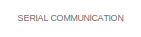
[diagram: root canvas - part 1/9, top left region]
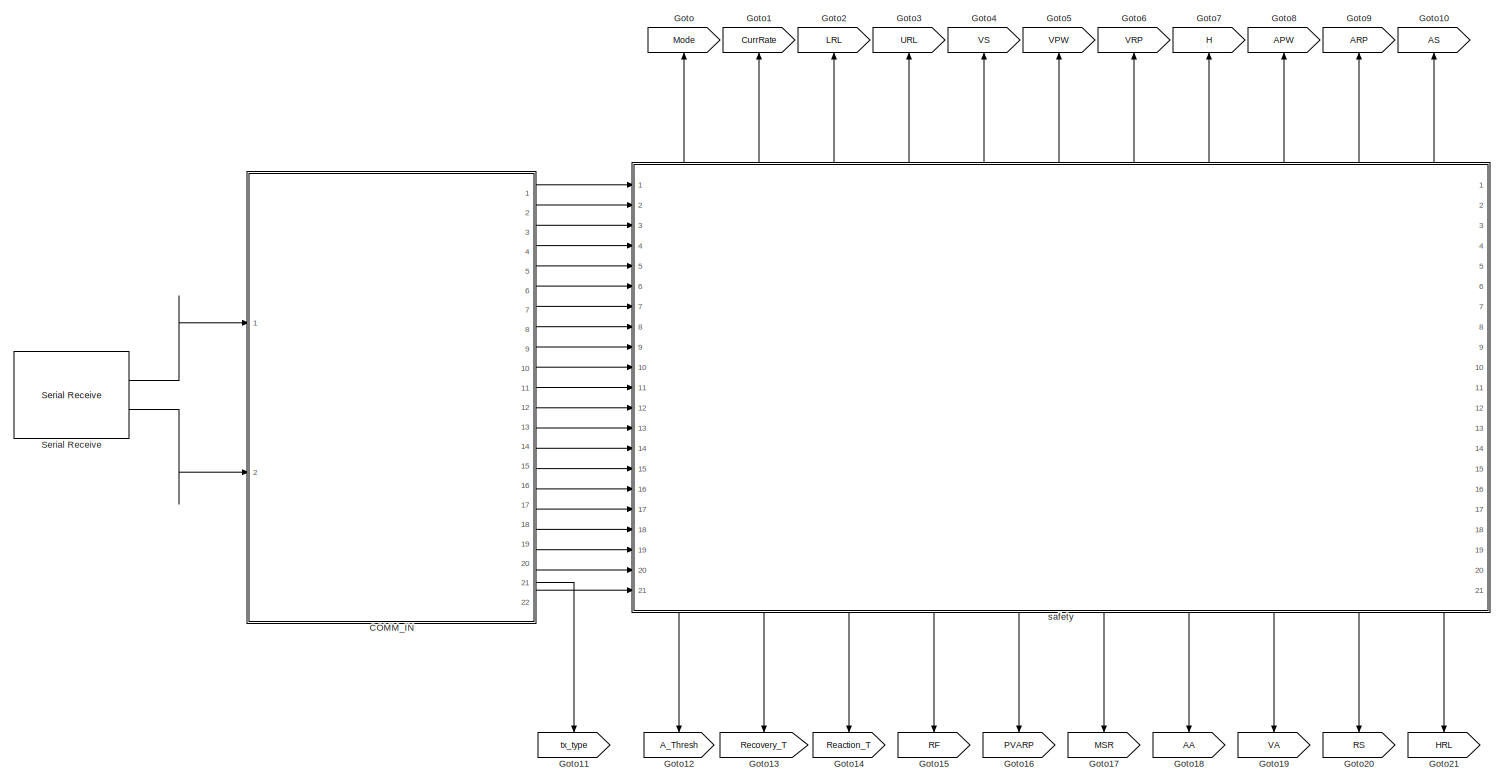
[diagram: root canvas - part 2/9, top left region]
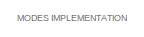
[diagram: root canvas - part 3/9, top right region]
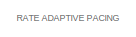
[diagram: root canvas - part 4/9, top left region]
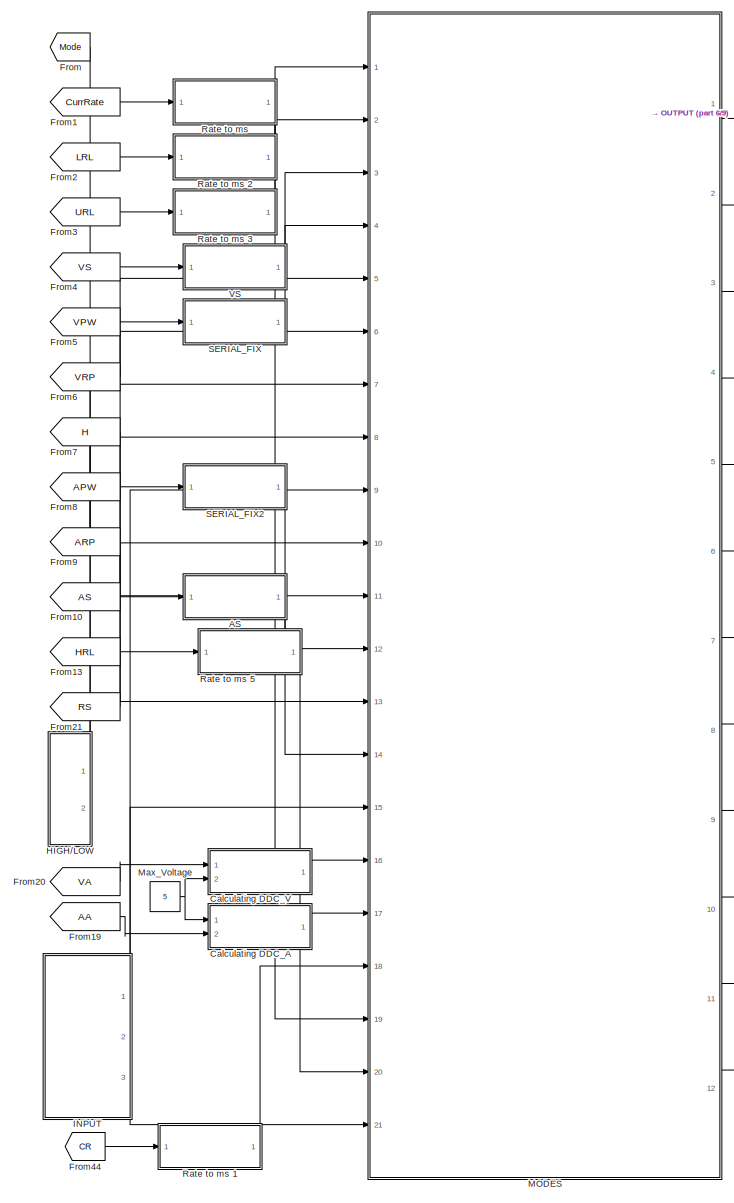
[diagram: root canvas - part 5/9, middle right region]
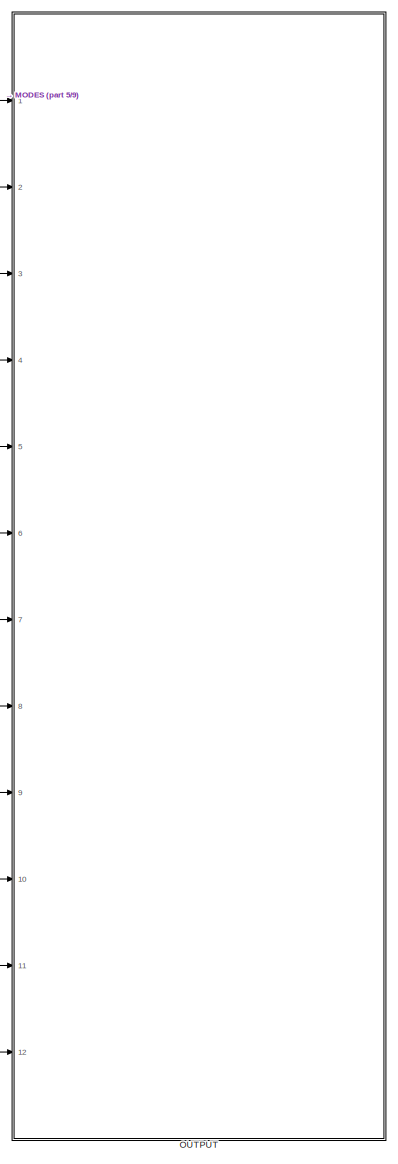
[diagram: root canvas - part 6/9, middle right region]
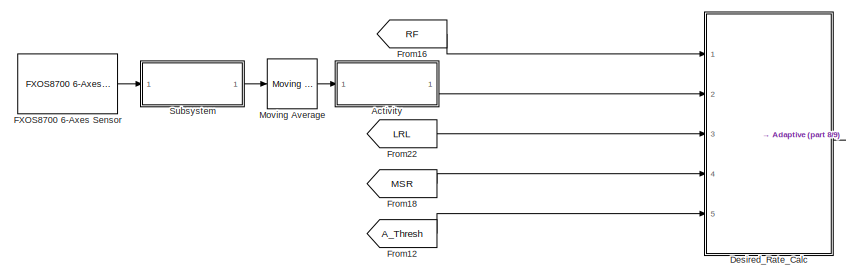
[diagram: root canvas - part 7/9, central region]
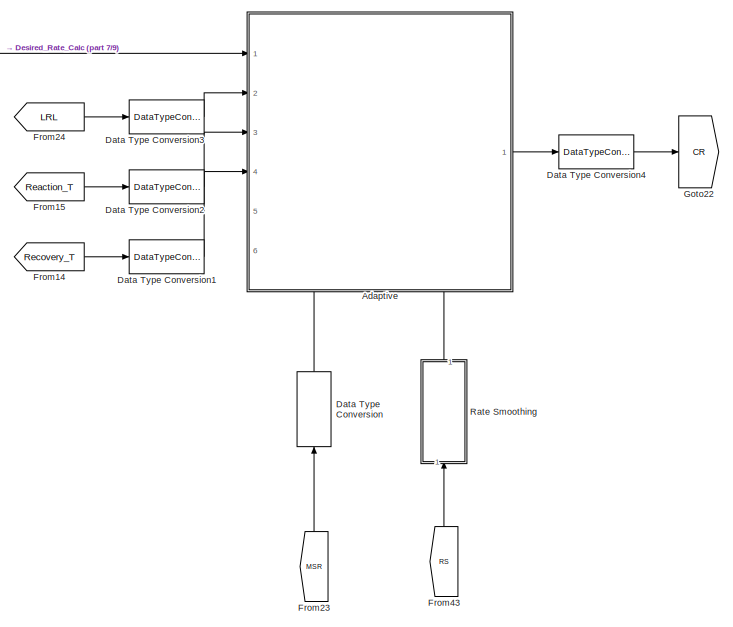
[diagram: root canvas - part 8/9, central region]
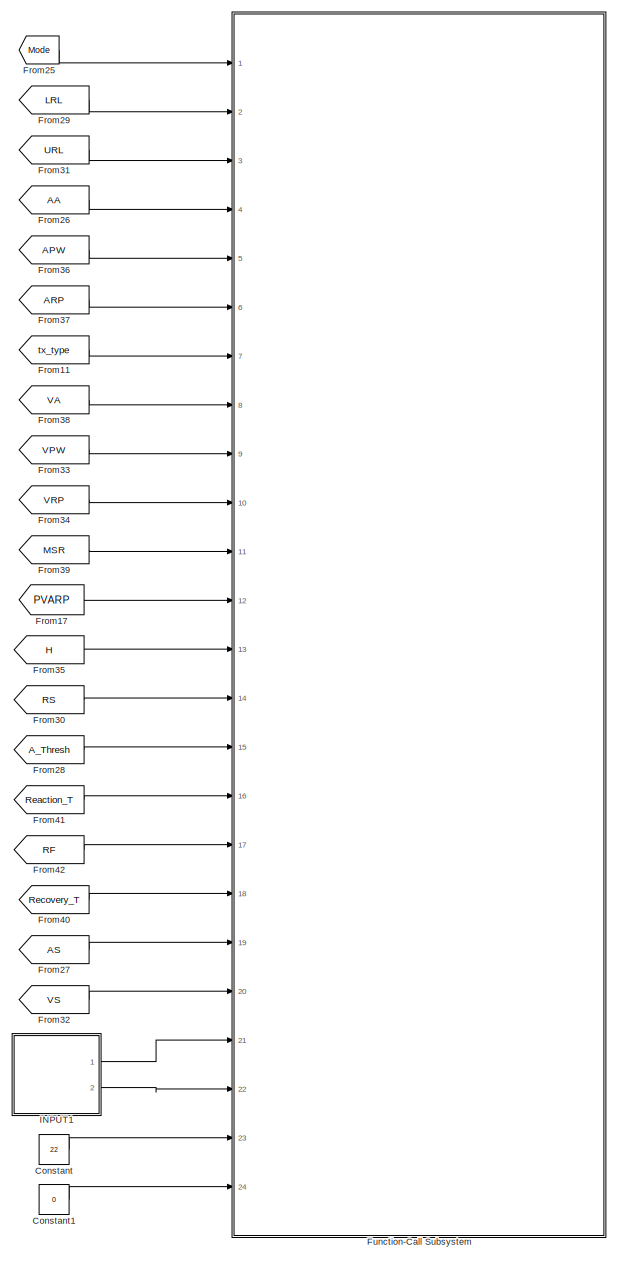
[diagram: root canvas - part 9/9, bottom left region]
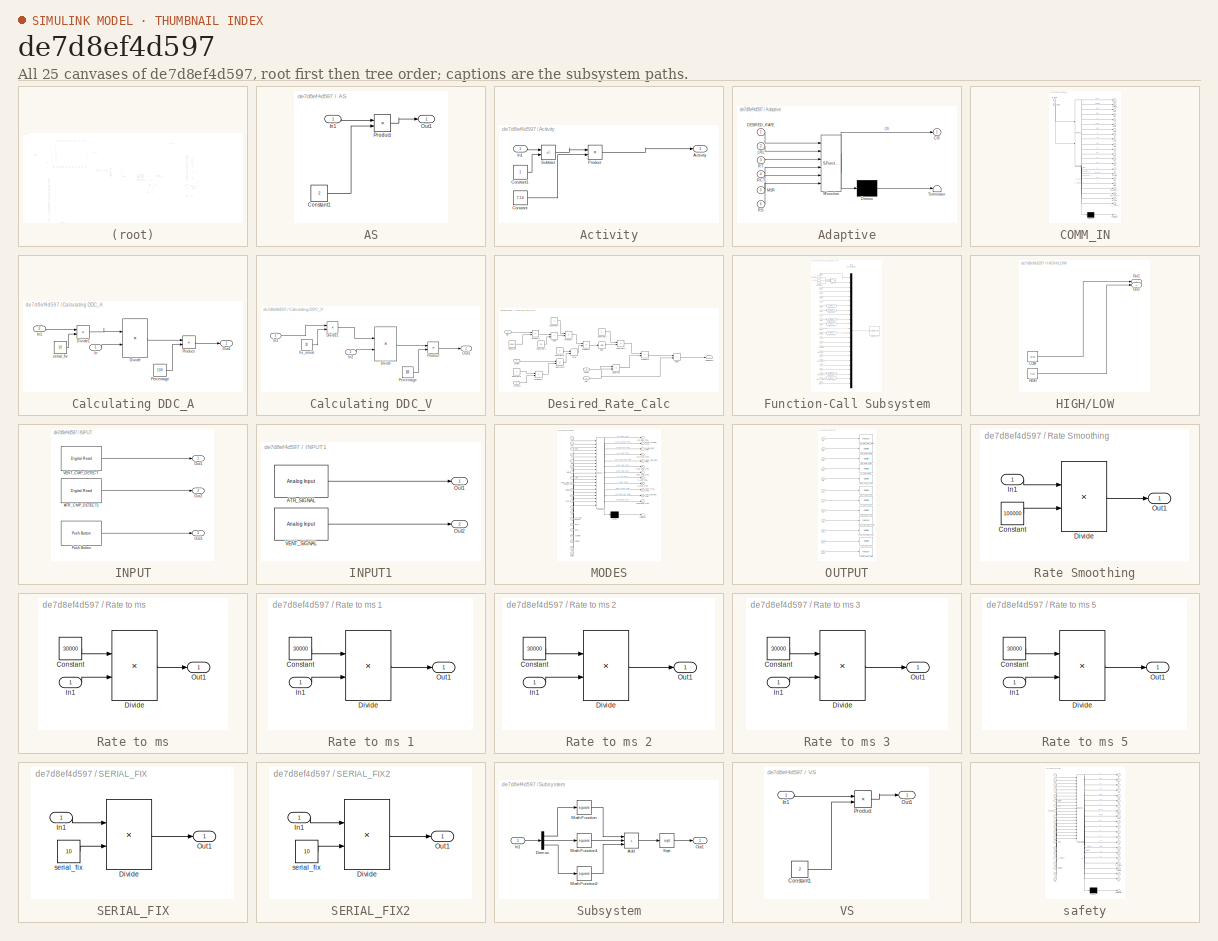
[diagram: thumbnail index - all 25 canvases of the model, root first then tree order]
MODEL slx_de7d8ef4d597
KIND model
CONFIG AbsTol = auto
CONFIG EnableMultiTasking = on
CONFIG FixedStep = 1e-3
CONFIG MaxStep = auto
CONFIG MinStep = auto
CONFIG RelTol = 1e-3
CONFIG SampleTimeConstraint = Unconstrained
CONFIG Solver = FixedStepAuto
CONFIG SolverName = FixedStepAuto
CONFIG StartTime = 0.0
CONFIG StopTime = 10.0
BLOCK [SubSystem] AS
  Ports = [1, 1]
  RequestExecContextInheritance = off
  ShowPortLabels = none
BLOCK [Constant] AS/Constant1
  Value = 2
BLOCK [Inport] AS/In1
BLOCK [Outport] AS/Out1
BLOCK [Product] AS/Product
  OutDataTypeStr = uint8
  Ports = [2, 1]
BLOCK [SubSystem] Activity
  Ports = [1, 1]
  RequestExecContextInheritance = off
BLOCK [Outport] Activity/Activity
BLOCK [Constant] Activity/Constant
  Value = 7.14
BLOCK [Constant] Activity/Constant1
BLOCK [Inport] Activity/In1
BLOCK [Product] Activity/Product
  Ports = [2, 1]
BLOCK [Sum] Activity/Subtract
  IconShape = rectangular
  Inputs = +-
  Ports = [2, 1]
BLOCK [SubSystem] Adaptive
  ErrorFcn = Stateflow.Translate.translate
  PermitHierarchicalResolution = ExplicitOnly
  PortSchema = {"entries":[{"content":{"sides":[{"content":{"connectorIds":["In1","In2","In3","In4"]},"type":"ConnectorPlacement.EquallySpacedRectSide","uuid":"fe050f22-06e5-4282-8c1f-2d2223b97801"},{"content":{"connectorIds":["Out1"],"side":"RIGHT"},"type":"ConnectorPlacement.EquallySpacedRectSide","uuid":"c3804d61-a816-4068-9373-d872d22aa45e"},{"content":{"connectorIds":[],"side":"TOP"},"type":"ConnectorPlacem...<+415ch>
  Ports = [6, 1]
  RequestExecContextInheritance = off
  SFBlockType = Chart
  TreatAsAtomicUnit = on
BLOCK [Demux] Adaptive/ Demux 
  Outputs = 1
  Ports = [1, 1]
BLOCK [S-Function] Adaptive/ SFunction 
  EnableBusSupport = on
  FunctionName = sf_sfun
  PortCounts = [6 2]
  Ports = [6, 2]
  SFcnIsStateOwnerBlock = off
  SFunctionDeploymentMode = off
  Tag = Stateflow S-Function 1
BLOCK [Terminator] Adaptive/ Terminator 
BLOCK [Outport] Adaptive/CR
BLOCK [Inport] Adaptive/DESIRED_RATE
BLOCK [Inport] Adaptive/LRL
  Port = 2
BLOCK [Inport] Adaptive/MSR
  Port = 5
BLOCK [Inport] Adaptive/RCT
  Port = 4
BLOCK [Inport] Adaptive/RS
  Port = 6
BLOCK [Inport] Adaptive/RT
  Port = 3
BLOCK [SubSystem] COMM_IN
  ErrorFcn = Stateflow.Translate.translate
  PermitHierarchicalResolution = ExplicitOnly
  PortSchema = {"entries":[{"content":{"sides":[{"content":{"connectorIds":["In1","In2"]},"type":"ConnectorPlacement.EquallySpacedRectSide","uuid":"6d8dc20d-05a6-41c0-8aa0-ece9a728cc0a"},{"content":{"connectorIds":["Out1","Out2","Out3","Out4","Out5","Out6","Out7","Out8","Out9","Out10","Out11","Out12","Out13","Out14","Out15","Out18","Out16","Out17","Out19","Out20","Out22","Out21"],"side":"RIGHT"},"type":"Connecto...<+408ch>
  Ports = [2, 22]
  RequestExecContextInheritance = off
  SFBlockType = Chart
  TreatAsAtomicUnit = on
BLOCK [Demux] COMM_IN/ Demux 
  Outputs = 1
  Ports = [1, 1]
BLOCK [S-Function] COMM_IN/ SFunction 
  EnableBusSupport = on
  FunctionName = sf_sfun
  PortCounts = [2 23]
  Ports = [2, 23]
  SFcnIsStateOwnerBlock = off
  SFunctionDeploymentMode = off
  Tag = Stateflow S-Function 2
BLOCK [Terminator] COMM_IN/ Terminator 
BLOCK [Outport] COMM_IN/AA
  Port = 15
BLOCK [Outport] COMM_IN/APW
  Port = 9
BLOCK [Outport] COMM_IN/ARP
  Port = 10
BLOCK [Outport] COMM_IN/AS
  Port = 11
BLOCK [Outport] COMM_IN/A_Thresh
  Port = 22
BLOCK [Outport] COMM_IN/CurrRate
  Port = 2
BLOCK [Outport] COMM_IN/H
  Port = 8
BLOCK [Outport] COMM_IN/HRL
  Port = 12
BLOCK [Outport] COMM_IN/LRL
  Port = 3
BLOCK [Outport] COMM_IN/MSR
  Port = 18
BLOCK [Outport] COMM_IN/Mode
BLOCK [Outport] COMM_IN/PVARP
  Port = 16
BLOCK [Outport] COMM_IN/RF
  Port = 17
BLOCK [Outport] COMM_IN/RS
  Port = 13
BLOCK [Outport] COMM_IN/Reaction_T
  Port = 19
BLOCK [Outport] COMM_IN/Recovery_T
  Port = 20
BLOCK [Outport] COMM_IN/URL
  Port = 4
BLOCK [Outport] COMM_IN/VA
  Port = 14
BLOCK [Outport] COMM_IN/VPW
  Port = 6
BLOCK [Outport] COMM_IN/VRP
  Port = 7
BLOCK [Outport] COMM_IN/VS
  Port = 5
BLOCK [Inport] COMM_IN/rx_data
BLOCK [Inport] COMM_IN/status
  Port = 2
BLOCK [Outport] COMM_IN/tx_type
  Port = 21
BLOCK [SubSystem] Calculating DDC_A
  Ports = [2, 1]
  RequestExecContextInheritance = off
  ShowPortLabels = none
BLOCK [Product] Calculating DDC_A/Divide
  Inputs = */
  Ports = [2, 1]
BLOCK [Product] Calculating DDC_A/Divide1
  Inputs = */
  Ports = [2, 1]
BLOCK [Inport] Calculating DDC_A/In
BLOCK [Inport] Calculating DDC_A/In1
  Port = 2
BLOCK [Outport] Calculating DDC_A/Out1
BLOCK [Constant] Calculating DDC_A/Percentage
  Value = 100
BLOCK [Product] Calculating DDC_A/Product
  Ports = [2, 1]
BLOCK [Constant] Calculating DDC_A/serial_fix
  Value = 10
BLOCK [SubSystem] Calculating DDC_V
  Ports = [2, 1]
  RequestExecContextInheritance = off
  ShowPortLabels = none
BLOCK [Product] Calculating DDC_V/Divide
  Inputs = */
  Ports = [2, 1]
BLOCK [Product] Calculating DDC_V/Divide1
  Inputs = */
  Ports = [2, 1]
BLOCK [Inport] Calculating DDC_V/In1
BLOCK [Inport] Calculating DDC_V/In2
  Port = 2
BLOCK [Outport] Calculating DDC_V/Out1
BLOCK [Constant] Calculating DDC_V/Percentage
  Value = 100
BLOCK [Product] Calculating DDC_V/Product
  Ports = [2, 1]
BLOCK [Constant] Calculating DDC_V/fix_serial
  Value = 10
BLOCK [Constant] Constant
  OutDataTypeStr = uint8
  Value = 22
BLOCK [Constant] Constant1
  Value = 0
BLOCK [DataTypeConversion] Data Type Conversion
  NameLocation = right
  OutDataTypeStr = double
  SaturateOnIntegerOverflow = off
BLOCK [DataTypeConversion] Data Type Conversion1
  OutDataTypeStr = double
  SaturateOnIntegerOverflow = off
BLOCK [DataTypeConversion] Data Type Conversion2
  OutDataTypeStr = double
  SaturateOnIntegerOverflow = off
BLOCK [DataTypeConversion] Data Type Conversion3
  OutDataTypeStr = double
  SaturateOnIntegerOverflow = off
BLOCK [DataTypeConversion] Data Type Conversion4
  OutDataTypeStr = uint8
  RndMeth = Ceiling
  SaturateOnIntegerOverflow = off
BLOCK [SubSystem] Desired_Rate_Calc
  Ports = [5, 1]
  RequestExecContextInheritance = off
BLOCK [Inport] Desired_Rate_Calc/AThresh
  Port = 5
BLOCK [Inport] Desired_Rate_Calc/Activity
  Port = 2
BLOCK [Sum] Desired_Rate_Calc/Add2
  IconShape = rectangular
  Ports = [2, 1]
BLOCK [Sum] Desired_Rate_Calc/Add3
  IconShape = rectangular
  OutDataTypeStr = double
  Ports = [2, 1]
  RndMeth = Zero
BLOCK [Constant] Desired_Rate_Calc/Constant
  Value = 0.0867
BLOCK [Constant] Desired_Rate_Calc/Constant1
  Value = 0.1
BLOCK [Constant] Desired_Rate_Calc/Constant2
BLOCK [Constant] Desired_Rate_Calc/Constant3
  Value = 3
BLOCK [Constant] Desired_Rate_Calc/Constant4
  Value = -1
BLOCK [Constant] Desired_Rate_Calc/Constant5
  Value = 0
BLOCK [Math] Desired_Rate_Calc/Exp
  Ports = [1, 1]
BLOCK [Inport] Desired_Rate_Calc/LRL
  Port = 3
BLOCK [Inport] Desired_Rate_Calc/MSR
  Port = 4
BLOCK [MinMax] Desired_Rate_Calc/Max
  Function = max
  Inputs = 2
  Ports = [2, 1]
BLOCK [Product] Desired_Rate_Calc/Product1
  Ports = [2, 1]
BLOCK [Product] Desired_Rate_Calc/Product2
  Ports = [2, 1]
BLOCK [Product] Desired_Rate_Calc/Product3
  Ports = [2, 1]
BLOCK [Product] Desired_Rate_Calc/Product4
  Ports = [2, 1]
BLOCK [Product] Desired_Rate_Calc/Product5
  Ports = [2, 1]
BLOCK [Inport] Desired_Rate_Calc/RF
BLOCK [Sum] Desired_Rate_Calc/Subtract
  IconShape = rectangular
  Inputs = +-
  Ports = [2, 1]
BLOCK [Sum] Desired_Rate_Calc/Subtract1
  IconShape = rectangular
  Inputs = +-
  Ports = [2, 1]
BLOCK [Sum] Desired_Rate_Calc/Subtract2
  IconShape = rectangular
  Inputs = +-
  Ports = [2, 1]
BLOCK [Outport] Desired_Rate_Calc/newbpms
BLOCK [Reference] FXOS8700 6-Axes Sensor  REF=frdmk64flib/FXOS8700 6-Axes Sensor
  Ports = [0, 1]
  SourceBlock = frdmk64flib/FXOS8700 6-Axes Sensor
  SourceProductBaseCode = EC_FRDM_K64F
  SourceType = freedomk64f.fxos8700
BLOCK [From] From
  GotoTag = Mode
  TagVisibility = global
BLOCK [From] From1
  GotoTag = CurrRate
  TagVisibility = global
BLOCK [From] From10
  GotoTag = AS
  TagVisibility = global
BLOCK [From] From11
  GotoTag = tx_type
  TagVisibility = global
BLOCK [From] From12
  GotoTag = A_Thresh
  TagVisibility = global
BLOCK [From] From13
  GotoTag = HRL
  TagVisibility = global
BLOCK [From] From14
  GotoTag = Recovery_T
  TagVisibility = global
BLOCK [From] From15
  GotoTag = Reaction_T
  TagVisibility = global
BLOCK [From] From16
  GotoTag = RF
  TagVisibility = global
BLOCK [From] From17
  GotoTag = PVARP
  TagVisibility = global
BLOCK [From] From18
  GotoTag = MSR
  TagVisibility = global
BLOCK [From] From19
  GotoTag = AA
  TagVisibility = global
BLOCK [From] From2
  GotoTag = LRL
  TagVisibility = global
BLOCK [From] From20
  GotoTag = VA
  TagVisibility = global
BLOCK [From] From21
  GotoTag = RS
  TagVisibility = global
BLOCK [From] From22
  GotoTag = LRL
  TagVisibility = global
BLOCK [From] From23
  GotoTag = MSR
  NameLocation = right
  TagVisibility = global
BLOCK [From] From24
  GotoTag = LRL
  TagVisibility = global
BLOCK [From] From25
  GotoTag = Mode
  TagVisibility = global
BLOCK [From] From26
  GotoTag = AA
  TagVisibility = global
BLOCK [From] From27
  GotoTag = AS
  TagVisibility = global
BLOCK [From] From28
  GotoTag = A_Thresh
  TagVisibility = global
BLOCK [From] From29
  GotoTag = LRL
  TagVisibility = global
BLOCK [From] From3
  GotoTag = URL
  TagVisibility = global
BLOCK [From] From30
  GotoTag = RS
  TagVisibility = global
BLOCK [From] From31
  GotoTag = URL
  TagVisibility = global
BLOCK [From] From32
  GotoTag = VS
  TagVisibility = global
BLOCK [From] From33
  GotoTag = VPW
  TagVisibility = global
BLOCK [From] From34
  GotoTag = VRP
  TagVisibility = global
BLOCK [From] From35
  GotoTag = H
  TagVisibility = global
BLOCK [From] From36
  GotoTag = APW
  TagVisibility = global
BLOCK [From] From37
  GotoTag = ARP
  TagVisibility = global
BLOCK [From] From38
  GotoTag = VA
  TagVisibility = global
BLOCK [From] From39
  GotoTag = MSR
  TagVisibility = global
BLOCK [From] From4
  GotoTag = VS
  TagVisibility = global
BLOCK [From] From40
  GotoTag = Recovery_T
  TagVisibility = global
BLOCK [From] From41
  GotoTag = Reaction_T
  TagVisibility = global
BLOCK [From] From42
  GotoTag = RF
  TagVisibility = global
BLOCK [From] From43
  GotoTag = RS
  NameLocation = right
  TagVisibility = global
BLOCK [From] From44
  GotoTag = CR
  TagVisibility = global
BLOCK [From] From5
  GotoTag = VPW
  TagVisibility = global
BLOCK [From] From6
  GotoTag = VRP
  TagVisibility = global
BLOCK [From] From7
  GotoTag = H
  TagVisibility = global
BLOCK [From] From8
  GotoTag = APW
  TagVisibility = global
BLOCK [From] From9
  GotoTag = ARP
  TagVisibility = global
BLOCK [SubSystem] Function-Call Subsystem
  Ports = [24, 0, 0, 1]
  RequestExecContextInheritance = off
  TreatAsAtomicUnit = on
BLOCK [Inport] Function-Call Subsystem/AA
  Port = 4
BLOCK [Inport] Function-Call Subsystem/APW
  Port = 5
BLOCK [Inport] Function-Call Subsystem/ARP
  Port = 6
BLOCK [Inport] Function-Call Subsystem/AS
  Port = 19
BLOCK [Inport] Function-Call Subsystem/ATR_SIGNAL
  NameLocation = left
  Port = 21
BLOCK [Inport] Function-Call Subsystem/A_Thresh
  Port = 15
BLOCK [Reference] Function-Call Subsystem/Byte Pack1  REF=etargetslib/Byte Pack
  Ports = [1, 1]
  SourceBlock = etargetslib/Byte Pack
  SourceProductBaseCode = ME
  SourceType = Byte pack
BLOCK [Reference] Function-Call Subsystem/Byte Pack2  REF=etargetslib/Byte Pack
  Ports = [1, 1]
  SourceBlock = etargetslib/Byte Pack
  SourceProductBaseCode = ME
  SourceType = Byte pack
BLOCK [Reference] Function-Call Subsystem/Byte Pack3  REF=etargetslib/Byte Pack
  Ports = [1, 1]
  SourceBlock = etargetslib/Byte Pack
  SourceProductBaseCode = ME
  SourceType = Byte pack
BLOCK [Reference] Function-Call Subsystem/Byte Pack4  REF=etargetslib/Byte Pack
  Ports = [1, 1]
  SourceBlock = etargetslib/Byte Pack
  SourceProductBaseCode = ME
  SourceType = Byte pack
BLOCK [Reference] Function-Call Subsystem/Byte Pack5  REF=etargetslib/Byte Pack
  Ports = [1, 1]
  SourceBlock = etargetslib/Byte Pack
  SourceProductBaseCode = ME
  SourceType = Byte pack
BLOCK [Reference] Function-Call Subsystem/Byte Pack6  REF=etargetslib/Byte Pack
  Ports = [1, 1]
  SourceBlock = etargetslib/Byte Pack
  SourceProductBaseCode = ME
  SourceType = Byte pack
BLOCK [Reference] Function-Call Subsystem/Byte Pack7  REF=etargetslib/Byte Pack
  Ports = [1, 1]
  SourceBlock = etargetslib/Byte Pack
  SourceProductBaseCode = ME
  SourceType = Byte pack
BLOCK [Constant] Function-Call Subsystem/Constant
  OutDataTypeStr = uint8
  Value = 73
BLOCK [Constant] Function-Call Subsystem/Constant1
  OutDataTypeStr = uint8
  Value = 136
BLOCK [Inport] Function-Call Subsystem/H
  Port = 13
BLOCK [Inport] Function-Call Subsystem/Input
  Port = 24
BLOCK [Inport] Function-Call Subsystem/LRL
  Port = 2
BLOCK [Inport] Function-Call Subsystem/MSR
  Port = 11
BLOCK [Inport] Function-Call Subsystem/Mode
BLOCK [Mux] Function-Call Subsystem/Mux
  DisplayOption = bar
  Inputs = 24
  Ports = [24, 1]
BLOCK [Inport] Function-Call Subsystem/PVARP
  Port = 12
BLOCK [Inport] Function-Call Subsystem/RF
  Port = 17
BLOCK [Inport] Function-Call Subsystem/RS
  Port = 14
BLOCK [Inport] Function-Call Subsystem/Reaction_T
  Port = 16
BLOCK [Inport] Function-Call Subsystem/Recovery_T
  Port = 18
BLOCK [Inport] Function-Call Subsystem/SYNC
  Port = 23
BLOCK [Reference] Function-Call Subsystem/Serial Transmit  REF=frdmk64flib/Serial Transmit
  Ports = [1]
  SourceBlock = frdmk64flib/Serial Transmit
  SourceProductBaseCode = EC_FRDM_K64F
  SourceType = freedomk64f.SCIWrite
BLOCK [Switch] Function-Call Subsystem/Switch2
  Criteria = u2 > Threshold
  InputSameDT = off
  SaturateOnIntegerOverflow = off
BLOCK [Inport] Function-Call Subsystem/URL
  Port = 3
BLOCK [Inport] Function-Call Subsystem/VA
  Port = 8
BLOCK [Inport] Function-Call Subsystem/VENT_SIGNAL
  NameLocation = top
  Port = 22
BLOCK [Inport] Function-Call Subsystem/VPW
  Port = 9
BLOCK [Inport] Function-Call Subsystem/VRP
  Port = 10
BLOCK [Inport] Function-Call Subsystem/VS
  Port = 20
BLOCK [TriggerPort] Function-Call Subsystem/send_params2
  FunctionName = send_params2
  IsSimulinkFunction = on
  Ports = []
  StatesWhenEnabling = held
  TriggerType = function-call
  VariantControl = Variant
BLOCK [Inport] Function-Call Subsystem/tx_type
  Port = 7
BLOCK [Goto] Goto
  GotoTag = Mode
  IconDisplay = Tag and signal name
  NameLocation = right
  TagVisibility = global
BLOCK [Goto] Goto1
  GotoTag = CurrRate
  IconDisplay = Tag and signal name
  NameLocation = right
  TagVisibility = global
BLOCK [Goto] Goto10
  GotoTag = AS
  IconDisplay = Tag and signal name
  NameLocation = right
  TagVisibility = global
BLOCK [Goto] Goto11
  GotoTag = tx_type
  IconDisplay = Tag and signal name
  NameLocation = left
  TagVisibility = global
BLOCK [Goto] Goto12
  GotoTag = A_Thresh
  IconDisplay = Tag and signal name
  NameLocation = left
  TagVisibility = global
BLOCK [Goto] Goto13
  GotoTag = Recovery_T
  IconDisplay = Tag and signal name
  NameLocation = left
  TagVisibility = global
BLOCK [Goto] Goto14
  GotoTag = Reaction_T
  IconDisplay = Tag and signal name
  TagVisibility = global
BLOCK [Goto] Goto15
  GotoTag = RF
  IconDisplay = Tag and signal name
  NameLocation = left
  TagVisibility = global
BLOCK [Goto] Goto16
  GotoTag = PVARP
  IconDisplay = Tag and signal name
  NameLocation = left
  TagVisibility = global
BLOCK [Goto] Goto17
  GotoTag = MSR
  IconDisplay = Tag and signal name
  NameLocation = left
  TagVisibility = global
BLOCK [Goto] Goto18
  GotoTag = AA
  IconDisplay = Tag and signal name
  NameLocation = left
  TagVisibility = global
BLOCK [Goto] Goto19
  GotoTag = VA
  IconDisplay = Tag and signal name
  NameLocation = left
  TagVisibility = global
BLOCK [Goto] Goto2
  GotoTag = LRL
  IconDisplay = Tag and signal name
  NameLocation = right
  TagVisibility = global
BLOCK [Goto] Goto20
  GotoTag = RS
  IconDisplay = Tag and signal name
  NameLocation = left
  TagVisibility = global
BLOCK [Goto] Goto21
  GotoTag = HRL
  IconDisplay = Tag and signal name
  NameLocation = left
  TagVisibility = global
BLOCK [Goto] Goto22
  GotoTag = CR
  IconDisplay = Tag and signal name
  TagVisibility = global
BLOCK [Goto] Goto3
  GotoTag = URL
  IconDisplay = Tag and signal name
  NameLocation = right
  TagVisibility = global
BLOCK [Goto] Goto4
  GotoTag = VS
  IconDisplay = Tag and signal name
  NameLocation = right
  TagVisibility = global
BLOCK [Goto] Goto5
  GotoTag = VPW
  IconDisplay = Tag and signal name
  NameLocation = right
  TagVisibility = global
BLOCK [Goto] Goto6
  GotoTag = VRP
  IconDisplay = Tag and signal name
  NameLocation = right
  TagVisibility = global
BLOCK [Goto] Goto7
  GotoTag = H
  IconDisplay = Tag and signal name
  NameLocation = right
  TagVisibility = global
BLOCK [Goto] Goto8
  GotoTag = APW
  IconDisplay = Tag and signal name
  NameLocation = right
  TagVisibility = global
BLOCK [Goto] Goto9
  GotoTag = ARP
  IconDisplay = Tag and signal name
  NameLocation = right
  TagVisibility = global
BLOCK [SubSystem] HIGH//LOW
  Ports = [0, 2]
  RequestExecContextInheritance = off
  ShowPortLabels = none
BLOCK [Constant] HIGH//LOW/HIGH
  Value = true
BLOCK [Constant] HIGH//LOW/LOW
  Value = false
BLOCK [Outport] HIGH//LOW/Out1
BLOCK [Outport] HIGH//LOW/Out2
  Port = 2
BLOCK [SubSystem] INPUT
  Ports = [0, 3]
  RequestExecContextInheritance = off
  ShowPortLabels = none
BLOCK [Reference] INPUT/ATR_CMP_DETECT1  REF=frdmk64flib/Digital Read
  Ports = [0, 1]
  SourceBlock = frdmk64flib/Digital Read
  SourceProductBaseCode = EC_FRDM_K64F
  SourceType = freedomk64f.DigitalRead
BLOCK [Outport] INPUT/Out1
BLOCK [Outport] INPUT/Out2
  Port = 2
BLOCK [Outport] INPUT/Out3
  Port = 3
BLOCK [Reference] INPUT/Push Button  REF=frdmk64flib/Push Button
  Ports = [0, 1]
  SourceBlock = frdmk64flib/Push Button
  SourceProductBaseCode = EC_FRDM_K64F
  SourceType = freedomk64f.PushButton
BLOCK [Reference] INPUT/VENT_CMP_DETECT  REF=frdmk64flib/Digital Read
  Ports = [0, 1]
  SourceBlock = frdmk64flib/Digital Read
  SourceProductBaseCode = EC_FRDM_K64F
  SourceType = freedomk64f.DigitalRead
BLOCK [SubSystem] INPUT1
  Ports = [0, 2]
  RequestExecContextInheritance = off
  ShowPortLabels = none
BLOCK [Reference] INPUT1/ATR_SIGNAL  REF=frdmk64flib/Analog Input
  Ports = [0, 1]
  SourceBlock = frdmk64flib/Analog Input
  SourceProductBaseCode = EC_FRDM_K64F
  SourceType = freedomk64f.AnalogInput
BLOCK [Outport] INPUT1/Out1
  OutDataTypeStr = double
BLOCK [Outport] INPUT1/Out2
  OutDataTypeStr = double
  Port = 2
BLOCK [Reference] INPUT1/VENT_SIGNAL  REF=frdmk64flib/Analog Input
  Ports = [0, 1]
  SourceBlock = frdmk64flib/Analog Input
  SourceProductBaseCode = EC_FRDM_K64F
  SourceType = freedomk64f.AnalogInput
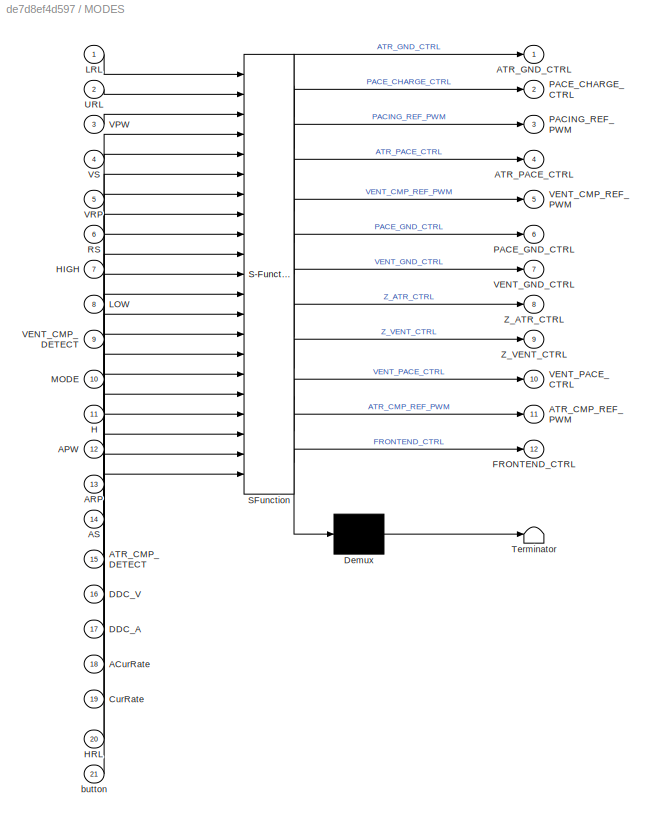
BLOCK [SubSystem] MODES
  ErrorFcn = Stateflow.Translate.translate
  PermitHierarchicalResolution = ExplicitOnly
  PortSchema = {"entries":[{"content":{"sides":[{"content":{"connectorIds":["In10","In19","In1","In2","In4","In3","In5","In11","In12","In13","In14","In20","In6","In8","In7","In16","In17","In9","In15","In21","In18"]},"type":"ConnectorPlacement.EquallySpacedRectSide","uuid":"0889717d-8b09-4f94-9ffa-e6ec73606ec2"},{"content":{"connectorIds":["Out11","Out4","Out1","Out8","Out10","Out7","Out9","Out12","Out5","Out2","...<+454ch>
  Ports = [21, 12]
  RequestExecContextInheritance = off
  SFBlockType = Chart
  ShowPortLabels = FromPortBlockName
  TreatAsAtomicUnit = on
BLOCK [Demux] MODES/ Demux 
  Outputs = 1
  Ports = [1, 1]
BLOCK [S-Function] MODES/ SFunction 
  EnableBusSupport = on
  FunctionName = sf_sfun
  PortCounts = [21 13]
  Ports = [21, 13]
  SFcnIsStateOwnerBlock = off
  SFunctionDeploymentMode = off
  Tag = Stateflow S-Function 3
BLOCK [Terminator] MODES/ Terminator 
BLOCK [Inport] MODES/ACurRate
  Port = 18
BLOCK [Inport] MODES/APW
  Port = 12
BLOCK [Inport] MODES/ARP
  Port = 13
BLOCK [Inport] MODES/AS
  Port = 14
BLOCK [Inport] MODES/ATR_CMP_DETECT
  Port = 15
BLOCK [Outport] MODES/ATR_CMP_REF_PWM
  Port = 11
BLOCK [Outport] MODES/ATR_GND_CTRL
BLOCK [Outport] MODES/ATR_PACE_CTRL
  Port = 4
BLOCK [Inport] MODES/CurRate
  Port = 19
BLOCK [Inport] MODES/DDC_A
  Port = 17
BLOCK [Inport] MODES/DDC_V
  Port = 16
BLOCK [Outport] MODES/FRONTEND_CTRL
  Port = 12
BLOCK [Inport] MODES/H
  Port = 11
BLOCK [Inport] MODES/HIGH
  Port = 7
BLOCK [Inport] MODES/HRL
  Port = 20
BLOCK [Inport] MODES/LOW
  Port = 8
BLOCK [Inport] MODES/LRL
BLOCK [Inport] MODES/MODE
  Port = 10
BLOCK [Outport] MODES/PACE_CHARGE_CTRL
  Port = 2
BLOCK [Outport] MODES/PACE_GND_CTRL
  Port = 6
BLOCK [Outport] MODES/PACING_REF_PWM
  Port = 3
BLOCK [Inport] MODES/RS
  Port = 6
BLOCK [Inport] MODES/URL
  Port = 2
BLOCK [Inport] MODES/VENT_CMP_DETECT
  Port = 9
BLOCK [Outport] MODES/VENT_CMP_REF_PWM
  Port = 5
BLOCK [Outport] MODES/VENT_GND_CTRL
  Port = 7
BLOCK [Outport] MODES/VENT_PACE_CTRL
  Port = 10
BLOCK [Inport] MODES/VPW
  Port = 3
BLOCK [Inport] MODES/VRP
  Port = 5
BLOCK [Inport] MODES/VS
  Port = 4
BLOCK [Outport] MODES/Z_ATR_CTRL
  Port = 8
BLOCK [Outport] MODES/Z_VENT_CTRL
  Port = 9
BLOCK [Inport] MODES/button
  Port = 21
BLOCK [Constant] Max_Voltage
  Value = 5
BLOCK [Reference] Moving Average  REF=dspstat3/Moving
Average
  Ports = [1, 1]
  SourceBlock = dspstat3/Moving\nAverage
  SourceProductBaseCode = DS
  SourceType = dsp.simulink.MovingAverage
BLOCK [SubSystem] OUTPUT
  Ports = [12]
  RequestExecContextInheritance = off
  ShowPortLabels = none
BLOCK [Reference] OUTPUT/ATR_CMP_REF_PWM  REF=frdmk64flib/PWM Output
  Ports = [1]
  SourceBlock = frdmk64flib/PWM Output
  SourceProductBaseCode = EC_FRDM_K64F
  SourceType = freedomk64f.PWMOutput
BLOCK [Reference] OUTPUT/ATR_GND_CTRL  REF=frdmk64flib/Digital Write
  Ports = [1]
  SourceBlock = frdmk64flib/Digital Write
  SourceProductBaseCode = EC_FRDM_K64F
  SourceType = freedomk64f.DigitalWrite
BLOCK [Reference] OUTPUT/ATR_PACE_CTRL  REF=frdmk64flib/Digital Write
  Ports = [1]
  SourceBlock = frdmk64flib/Digital Write
  SourceProductBaseCode = EC_FRDM_K64F
  SourceType = freedomk64f.DigitalWrite
BLOCK [Reference] OUTPUT/FRONTEND_CTRL  REF=frdmk64flib/Digital Write
  Ports = [1]
  SourceBlock = frdmk64flib/Digital Write
  SourceProductBaseCode = EC_FRDM_K64F
  SourceType = freedomk64f.DigitalWrite
BLOCK [Inport] OUTPUT/In1
BLOCK [Inport] OUTPUT/In10
  Port = 10
BLOCK [Inport] OUTPUT/In11
  Port = 11
BLOCK [Inport] OUTPUT/In12
  Port = 12
BLOCK [Inport] OUTPUT/In2
  Port = 2
BLOCK [Inport] OUTPUT/In3
  Port = 3
BLOCK [Inport] OUTPUT/In4
  Port = 4
BLOCK [Inport] OUTPUT/In5
  Port = 5
BLOCK [Inport] OUTPUT/In6
  Port = 6
BLOCK [Inport] OUTPUT/In7
  Port = 7
BLOCK [Inport] OUTPUT/In8
  Port = 8
BLOCK [Inport] OUTPUT/In9
  Port = 9
BLOCK [Reference] OUTPUT/PACE_CHARGE_CTRL  REF=frdmk64flib/Digital Write
  Ports = [1]
  SourceBlock = frdmk64flib/Digital Write
  SourceProductBaseCode = EC_FRDM_K64F
  SourceType = freedomk64f.DigitalWrite
BLOCK [Reference] OUTPUT/PACE_GND_CTRL  REF=frdmk64flib/Digital Write
  Ports = [1]
  SourceBlock = frdmk64flib/Digital Write
  SourceProductBaseCode = EC_FRDM_K64F
  SourceType = freedomk64f.DigitalWrite
BLOCK [Reference] OUTPUT/PACING_REF_PWM  REF=frdmk64flib/PWM Output
  Ports = [1]
  SourceBlock = frdmk64flib/PWM Output
  SourceProductBaseCode = EC_FRDM_K64F
  SourceType = freedomk64f.PWMOutput
BLOCK [Reference] OUTPUT/VENT_CMP_REF_PWM  REF=frdmk64flib/PWM Output
  Ports = [1]
  SourceBlock = frdmk64flib/PWM Output
  SourceProductBaseCode = EC_FRDM_K64F
  SourceType = freedomk64f.PWMOutput
BLOCK [Reference] OUTPUT/VENT_GND_CTRL  REF=frdmk64flib/Digital Write
  Ports = [1]
  SourceBlock = frdmk64flib/Digital Write
  SourceProductBaseCode = EC_FRDM_K64F
  SourceType = freedomk64f.DigitalWrite
BLOCK [Reference] OUTPUT/VENT_PACE_CTRL  REF=frdmk64flib/Digital Write
  Ports = [1]
  SourceBlock = frdmk64flib/Digital Write
  SourceProductBaseCode = EC_FRDM_K64F
  SourceType = freedomk64f.DigitalWrite
BLOCK [Reference] OUTPUT/Z_ATR_CTRL  REF=frdmk64flib/Digital Write
  Ports = [1]
  SourceBlock = frdmk64flib/Digital Write
  SourceProductBaseCode = EC_FRDM_K64F
  SourceType = freedomk64f.DigitalWrite
BLOCK [Reference] OUTPUT/Z_VENT_CTRL  REF=frdmk64flib/Digital Write
  Ports = [1]
  SourceBlock = frdmk64flib/Digital Write
  SourceProductBaseCode = EC_FRDM_K64F
  SourceType = freedomk64f.DigitalWrite
BLOCK [SubSystem] Rate Smoothing
  NameLocation = left
  Ports = [1, 1]
  RequestExecContextInheritance = off
  ShowPortLabels = none
BLOCK [Constant] Rate Smoothing/Constant
  Value = 100000
BLOCK [Product] Rate Smoothing/Divide
  Inputs = */
  OutDataTypeStr = double
  Ports = [2, 1]
  RndMeth = Zero
BLOCK [Inport] Rate Smoothing/In1
BLOCK [Outport] Rate Smoothing/Out1
BLOCK [SubSystem] Rate to ms
  Ports = [1, 1]
  RequestExecContextInheritance = off
  ShowPortLabels = none
BLOCK [SubSystem] Rate to ms 1
  Ports = [1, 1]
  RequestExecContextInheritance = off
  ShowPortLabels = none
BLOCK [Constant] Rate to ms 1/Constant
  Value = 30000
BLOCK [Product] Rate to ms 1/Divide
  Inputs = */
  OutDataTypeStr = uint16
  Ports = [2, 1]
  RndMeth = Ceiling
BLOCK [Inport] Rate to ms 1/In1
BLOCK [Outport] Rate to ms 1/Out1
BLOCK [SubSystem] Rate to ms 2
  Ports = [1, 1]
  RequestExecContextInheritance = off
  ShowPortLabels = none
BLOCK [Constant] Rate to ms 2/Constant
  Value = 30000
BLOCK [Product] Rate to ms 2/Divide
  Inputs = */
  OutDataTypeStr = uint16
  Ports = [2, 1]
  RndMeth = Ceiling
BLOCK [Inport] Rate to ms 2/In1
BLOCK [Outport] Rate to ms 2/Out1
BLOCK [SubSystem] Rate to ms 3
  Ports = [1, 1]
  RequestExecContextInheritance = off
  ShowPortLabels = none
BLOCK [Constant] Rate to ms 3/Constant
  Value = 30000
BLOCK [Product] Rate to ms 3/Divide
  Inputs = */
  OutDataTypeStr = uint16
  Ports = [2, 1]
  RndMeth = Ceiling
BLOCK [Inport] Rate to ms 3/In1
BLOCK [Outport] Rate to ms 3/Out1
BLOCK [SubSystem] Rate to ms 5
  Ports = [1, 1]
  RequestExecContextInheritance = off
  ShowPortLabels = none
BLOCK [Constant] Rate to ms 5/Constant
  Value = 30000
BLOCK [Product] Rate to ms 5/Divide
  Inputs = */
  OutDataTypeStr = uint16
  Ports = [2, 1]
  RndMeth = Ceiling
BLOCK [Inport] Rate to ms 5/In1
BLOCK [Outport] Rate to ms 5/Out1
BLOCK [Constant] Rate to ms/Constant
  Value = 30000
BLOCK [Product] Rate to ms/Divide
  Inputs = */
  OutDataTypeStr = uint16
  Ports = [2, 1]
  RndMeth = Ceiling
BLOCK [Inport] Rate to ms/In1
BLOCK [Outport] Rate to ms/Out1
BLOCK [SubSystem] SERIAL_FIX
  Ports = [1, 1]
  RequestExecContextInheritance = off
  ShowPortLabels = none
BLOCK [Product] SERIAL_FIX/Divide
  Inputs = */
  OutDataTypeStr = double
  Ports = [2, 1]
  RndMeth = Zero
BLOCK [Inport] SERIAL_FIX/In1
BLOCK [Outport] SERIAL_FIX/Out1
BLOCK [Constant] SERIAL_FIX/serial_fix
  Value = 10
BLOCK [SubSystem] SERIAL_FIX2
  Ports = [1, 1]
  RequestExecContextInheritance = off
  ShowPortLabels = none
BLOCK [Product] SERIAL_FIX2/Divide
  Inputs = */
  OutDataTypeStr = double
  Ports = [2, 1]
  RndMeth = Zero
BLOCK [Inport] SERIAL_FIX2/In1
BLOCK [Outport] SERIAL_FIX2/Out1
BLOCK [Constant] SERIAL_FIX2/serial_fix
  Value = 10
BLOCK [Reference] Serial Receive  REF=frdmk64flib/Serial Receive
  Ports = [0, 2]
  SourceBlock = frdmk64flib/Serial Receive
  SourceProductBaseCode = EC_FRDM_K64F
  SourceType = freedomk64f.SCIRead
BLOCK [SubSystem] Subsystem
  Ports = [1, 1]
  RequestExecContextInheritance = off
BLOCK [Sum] Subsystem/Add
  IconShape = rectangular
  Inputs = +++
  Ports = [3, 1]
BLOCK [Demux] Subsystem/Demux
  Outputs = 3
  Ports = [1, 3]
BLOCK [Inport] Subsystem/In1
BLOCK [Math] Subsystem/Math Function
  Operator = square
  Ports = [1, 1]
BLOCK [Math] Subsystem/Math Function1
  Operator = square
  Ports = [1, 1]
BLOCK [Math] Subsystem/Math Function2
  Operator = square
  Ports = [1, 1]
BLOCK [Outport] Subsystem/Out1
BLOCK [Sqrt] Subsystem/Sqrt
BLOCK [SubSystem] VS
  Ports = [1, 1]
  RequestExecContextInheritance = off
  ShowPortLabels = none
BLOCK [Constant] VS/Constant1
  Value = 2
BLOCK [Inport] VS/In1
BLOCK [Outport] VS/Out1
BLOCK [Product] VS/Product
  OutDataTypeStr = uint8
  Ports = [2, 1]
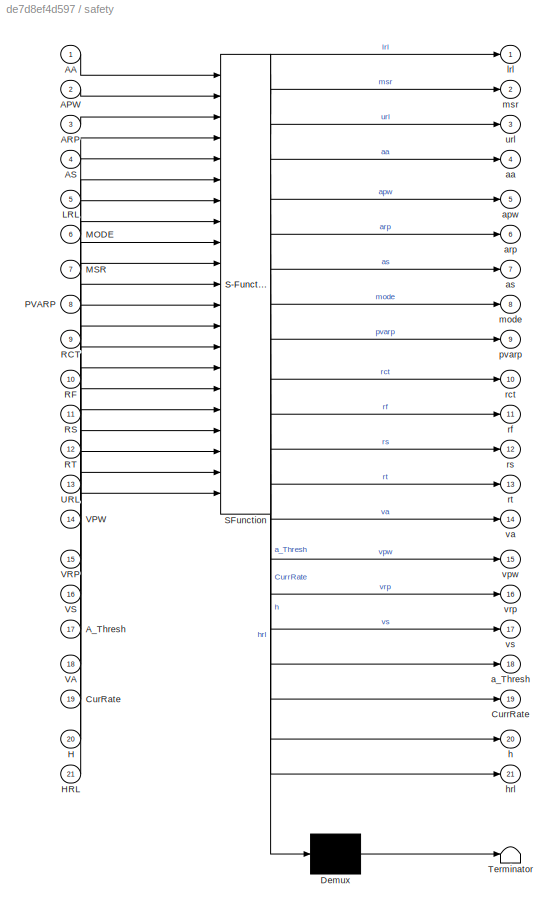
BLOCK [SubSystem] safety
  ErrorFcn = Stateflow.Translate.translate
  PermitHierarchicalResolution = ExplicitOnly
  PortSchema = {"entries":[{"content":{"sides":[{"content":{"connectorIds":["In6","In19","In5","In13","In16","In14","In15","In20","In2","In3","In4","In21","In11","In18","In1","In7","In8","In10","In12","In9","In17"]},"type":"ConnectorPlacement.EquallySpacedRectSide","uuid":"28f5cd87-14d2-468d-b30e-78b62bbd1f0e"},{"content":{"connectorIds":[],"side":"RIGHT"},"type":"ConnectorPlacement.EquallySpacedRectSide","uuid"...<+669ch>
  Ports = [21, 21]
  RequestExecContextInheritance = off
  SFBlockType = Chart
  TreatAsAtomicUnit = on
BLOCK [Demux] safety/ Demux 
  Outputs = 1
  Ports = [1, 1]
BLOCK [S-Function] safety/ SFunction 
  EnableBusSupport = off
  FunctionName = sf_sfun
  PortCounts = [21 22]
  Ports = [21, 22]
  SFcnIsStateOwnerBlock = off
  SFunctionDeploymentMode = off
  Tag = Stateflow S-Function 4
BLOCK [Terminator] safety/ Terminator 
BLOCK [Inport] safety/AA
BLOCK [Inport] safety/APW
  Port = 2
BLOCK [Inport] safety/ARP
  Port = 3
BLOCK [Inport] safety/AS
  Port = 4
BLOCK [Inport] safety/A_Thresh
  Port = 17
BLOCK [Inport] safety/CurRate
  Port = 19
BLOCK [Outport] safety/CurrRate
  Port = 19
BLOCK [Inport] safety/H
  Port = 20
BLOCK [Inport] safety/HRL
  Port = 21
BLOCK [Inport] safety/LRL
  Port = 5
BLOCK [Inport] safety/MODE
  Port = 6
BLOCK [Inport] safety/MSR
  Port = 7
BLOCK [Inport] safety/PVARP
  Port = 8
BLOCK [Inport] safety/RCT
  Port = 9
BLOCK [Inport] safety/RF
  Port = 10
BLOCK [Inport] safety/RS
  Port = 11
BLOCK [Inport] safety/RT
  Port = 12
BLOCK [Inport] safety/URL
  Port = 13
BLOCK [Inport] safety/VA
  Port = 18
BLOCK [Inport] safety/VPW
  Port = 14
BLOCK [Inport] safety/VRP
  Port = 15
BLOCK [Inport] safety/VS
  Port = 16
BLOCK [Outport] safety/a_Thresh
  Port = 18
BLOCK [Outport] safety/aa
  Port = 4
BLOCK [Outport] safety/apw
  Port = 5
BLOCK [Outport] safety/arp
  Port = 6
BLOCK [Outport] safety/as
  Port = 7
BLOCK [Outport] safety/h
  Port = 20
BLOCK [Outport] safety/hrl
  Port = 21
BLOCK [Outport] safety/lrl
BLOCK [Outport] safety/mode
  Port = 8
BLOCK [Outport] safety/msr
  Port = 2
BLOCK [Outport] safety/pvarp
  Port = 9
BLOCK [Outport] safety/rct
  Port = 10
BLOCK [Outport] safety/rf
  Port = 11
BLOCK [Outport] safety/rs
  Port = 12
BLOCK [Outport] safety/rt
  Port = 13
BLOCK [Outport] safety/url
  Port = 3
BLOCK [Outport] safety/va
  Port = 14
BLOCK [Outport] safety/vpw
  Port = 15
BLOCK [Outport] safety/vrp
  Port = 16
BLOCK [Outport] safety/vs
  Port = 17
ANNOTATION (root): MODES IMPLEMENTATION
ANNOTATION (root): RATE ADAPTIVE PACING
ANNOTATION (root): SERIAL COMMUNICATION
LINE AS/Constant1:1 -> AS/Product:2
LINE AS/In1:1 -> AS/Product:1
LINE AS/Product:1 -> AS/Out1:1
LINE AS:1 -> MODES:14
LINE Activity/Constant1:1 -> Activity/Subtract:2
LINE Activity/Constant:1 -> Activity/Product:2
LINE Activity/In1:1 -> Activity/Subtract:1
LINE Activity/Product:1 -> Activity/Activity:1
LINE Activity/Subtract:1 -> Activity/Product:1
LINE Activity:1 -> Desired_Rate_Calc:2
LINE Adaptive:1 -> Data Type Conversion4:1
LINE COMM_IN:1 -> safety:6
LINE COMM_IN:10 -> safety:3
LINE COMM_IN:11 -> safety:4
LINE COMM_IN:12 -> safety:21
LINE COMM_IN:13 -> safety:11
LINE COMM_IN:14 -> safety:18
LINE COMM_IN:15 -> safety:1
LINE COMM_IN:16 -> safety:8
LINE COMM_IN:17 -> safety:10
LINE COMM_IN:18 -> safety:7
LINE COMM_IN:19 -> safety:12
LINE COMM_IN:2 -> safety:19
LINE COMM_IN:20 -> safety:9
LINE COMM_IN:21 -> Goto11:1
LINE COMM_IN:22 -> safety:17
LINE COMM_IN:3 -> safety:5
LINE COMM_IN:4 -> safety:13
LINE COMM_IN:5 -> safety:16
LINE COMM_IN:6 -> safety:14
LINE COMM_IN:7 -> safety:15
LINE COMM_IN:8 -> safety:20
LINE COMM_IN:9 -> safety:2
LINE Calculating DDC_A/Divide1:1 -> Calculating DDC_A/Divide:1
LINE Calculating DDC_A/Divide:1 -> Calculating DDC_A/Product:1
LINE Calculating DDC_A/In1:1 -> Calculating DDC_A/Divide1:1
LINE Calculating DDC_A/In:1 -> Calculating DDC_A/Divide:2
LINE Calculating DDC_A/Percentage:1 -> Calculating DDC_A/Product:2
LINE Calculating DDC_A/Product:1 -> Calculating DDC_A/Out1:1
LINE Calculating DDC_A/serial_fix:1 -> Calculating DDC_A/Divide1:2
LINE Calculating DDC_A:1 -> MODES:17
LINE Calculating DDC_V/Divide1:1 -> Calculating DDC_V/Divide:1
LINE Calculating DDC_V/Divide:1 -> Calculating DDC_V/Product:1
LINE Calculating DDC_V/In1:1 -> Calculating DDC_V/Divide1:1
LINE Calculating DDC_V/In2:1 -> Calculating DDC_V/Divide:2
LINE Calculating DDC_V/Percentage:1 -> Calculating DDC_V/Product:2
LINE Calculating DDC_V/Product:1 -> Calculating DDC_V/Out1:1
LINE Calculating DDC_V/fix_serial:1 -> Calculating DDC_V/Divide1:2
LINE Calculating DDC_V:1 -> MODES:16
LINE Constant1:1 -> Function-Call Subsystem:24
LINE Constant:1 -> Function-Call Subsystem:23
LINE Data Type Conversion1:1 -> Adaptive:4
LINE Data Type Conversion2:1 -> Adaptive:3
LINE Data Type Conversion3:1 -> Adaptive:2
LINE Data Type Conversion4:1 -> Goto22:1
LINE Data Type Conversion:1 -> Adaptive:5
LINE Desired_Rate_Calc/AThresh:1 -> Desired_Rate_Calc/Product5:2
LINE Desired_Rate_Calc/Activity:1 -> Desired_Rate_Calc/Subtract2:1
LINE Desired_Rate_Calc/Add2:1 -> Desired_Rate_Calc/Product4:2
LINE Desired_Rate_Calc/Add3:1 -> Desired_Rate_Calc/newbpms:1
LINE Desired_Rate_Calc/Constant1:1 -> Desired_Rate_Calc/Add2:2
LINE Desired_Rate_Calc/Constant2:1 -> Desired_Rate_Calc/Subtract1:1
LINE Desired_Rate_Calc/Constant3:1 -> Desired_Rate_Calc/Product5:1
LINE Desired_Rate_Calc/Constant4:1 -> Desired_Rate_Calc/Product4:1
LINE Desired_Rate_Calc/Constant5:1 -> Desired_Rate_Calc/Max:1
LINE Desired_Rate_Calc/Constant:1 -> Desired_Rate_Calc/Product1:2
LINE Desired_Rate_Calc/Exp:1 -> Desired_Rate_Calc/Subtract1:2
NET Desired_Rate_Calc/LRL:1 -> Desired_Rate_Calc/Add3:2, Desired_Rate_Calc/Subtract:2
LINE Desired_Rate_Calc/MSR:1 -> Desired_Rate_Calc/Subtract:1
LINE Desired_Rate_Calc/Max:1 -> Desired_Rate_Calc/Product3:2
LINE Desired_Rate_Calc/Product1:1 -> Desired_Rate_Calc/Add2:1
LINE Desired_Rate_Calc/Product2:1 -> Desired_Rate_Calc/Add3:1
LINE Desired_Rate_Calc/Product3:1 -> Desired_Rate_Calc/Exp:1
LINE Desired_Rate_Calc/Product4:1 -> Desired_Rate_Calc/Product3:1
LINE Desired_Rate_Calc/Product5:1 -> Desired_Rate_Calc/Subtract2:2
LINE Desired_Rate_Calc/RF:1 -> Desired_Rate_Calc/Product1:1
LINE Desired_Rate_Calc/Subtract1:1 -> Desired_Rate_Calc/Product2:1
LINE Desired_Rate_Calc/Subtract2:1 -> Desired_Rate_Calc/Max:2
LINE Desired_Rate_Calc/Subtract:1 -> Desired_Rate_Calc/Product2:2
LINE Desired_Rate_Calc:1 -> Adaptive:1
LINE FXOS8700 6-Axes Sensor:1 -> Subsystem:1
LINE From10:1 -> AS:1
LINE From11:1 -> Function-Call Subsystem:7
LINE From12:1 -> Desired_Rate_Calc:5
LINE From13:1 -> Rate to ms 5:1
LINE From14:1 -> Data Type Conversion1:1
LINE From15:1 -> Data Type Conversion2:1
LINE From16:1 -> Desired_Rate_Calc:1
LINE From17:1 -> Function-Call Subsystem:12
LINE From18:1 -> Desired_Rate_Calc:4
LINE From19:1 -> Calculating DDC_A:2
LINE From1:1 -> Rate to ms:1
LINE From20:1 -> Calculating DDC_V:1
LINE From21:1 -> MODES:6
LINE From22:1 -> Desired_Rate_Calc:3
LINE From23:1 -> Data Type Conversion:1
LINE From24:1 -> Data Type Conversion3:1
LINE From25:1 -> Function-Call Subsystem:1
LINE From26:1 -> Function-Call Subsystem:4
LINE From27:1 -> Function-Call Subsystem:19
LINE From28:1 -> Function-Call Subsystem:15
LINE From29:1 -> Function-Call Subsystem:2
LINE From2:1 -> Rate to ms 2:1
LINE From30:1 -> Function-Call Subsystem:14
LINE From31:1 -> Function-Call Subsystem:3
LINE From32:1 -> Function-Call Subsystem:20
LINE From33:1 -> Function-Call Subsystem:9
LINE From34:1 -> Function-Call Subsystem:10
LINE From35:1 -> Function-Call Subsystem:13
LINE From36:1 -> Function-Call Subsystem:5
LINE From37:1 -> Function-Call Subsystem:6
LINE From38:1 -> Function-Call Subsystem:8
LINE From39:1 -> Function-Call Subsystem:11
LINE From3:1 -> Rate to ms 3:1
LINE From40:1 -> Function-Call Subsystem:18
LINE From41:1 -> Function-Call Subsystem:16
LINE From42:1 -> Function-Call Subsystem:17
LINE From43:1 -> Rate Smoothing:1
LINE From44:1 -> Rate to ms 1:1
LINE From4:1 -> VS:1
LINE From5:1 -> SERIAL_FIX:1
LINE From6:1 -> MODES:5
LINE From7:1 -> MODES:11
LINE From8:1 -> SERIAL_FIX2:1
LINE From9:1 -> MODES:13
LINE From:1 -> MODES:10
LINE Function-Call Subsystem/AA:1 -> Function-Call Subsystem/Mux:6
LINE Function-Call Subsystem/APW:1 -> Function-Call Subsystem/Byte Pack4:1
LINE Function-Call Subsystem/ARP:1 -> Function-Call Subsystem/Byte Pack1:1
LINE Function-Call Subsystem/AS:1 -> Function-Call Subsystem/Mux:20
LINE Function-Call Subsystem/ATR_SIGNAL:1 -> Function-Call Subsystem/Byte Pack7:1
LINE Function-Call Subsystem/A_Thresh:1 -> Function-Call Subsystem/Mux:16
LINE Function-Call Subsystem/Byte Pack1:1 -> Function-Call Subsystem/Mux:8
LINE Function-Call Subsystem/Byte Pack2:1 -> Function-Call Subsystem/Mux:11
LINE Function-Call Subsystem/Byte Pack3:1 -> Function-Call Subsystem/Mux:13
LINE Function-Call Subsystem/Byte Pack4:1 -> Function-Call Subsystem/Mux:7
LINE Function-Call Subsystem/Byte Pack5:1 -> Function-Call Subsystem/Mux:10
LINE Function-Call Subsystem/Byte Pack6:1 -> Function-Call Subsystem/Mux:23
LINE Function-Call Subsystem/Byte Pack7:1 -> Function-Call Subsystem/Mux:22
LINE Function-Call Subsystem/Constant1:1 -> Function-Call Subsystem/Switch2:3
LINE Function-Call Subsystem/Constant:1 -> Function-Call Subsystem/Switch2:1
LINE Function-Call Subsystem/H:1 -> Function-Call Subsystem/Mux:14
LINE Function-Call Subsystem/Input:1 -> Function-Call Subsystem/Mux:24
LINE Function-Call Subsystem/LRL:1 -> Function-Call Subsystem/Mux:4
LINE Function-Call Subsystem/MSR:1 -> Function-Call Subsystem/Mux:12
LINE Function-Call Subsystem/Mode:1 -> Function-Call Subsystem/Mux:3
LINE Function-Call Subsystem/Mux:1 -> Function-Call Subsystem/Serial Transmit:1
LINE Function-Call Subsystem/PVARP:1 -> Function-Call Subsystem/Byte Pack3:1
LINE Function-Call Subsystem/RF:1 -> Function-Call Subsystem/Mux:18
LINE Function-Call Subsystem/RS:1 -> Function-Call Subsystem/Mux:15
LINE Function-Call Subsystem/Reaction_T:1 -> Function-Call Subsystem/Mux:17
LINE Function-Call Subsystem/Recovery_T:1 -> Function-Call Subsystem/Mux:19
LINE Function-Call Subsystem/SYNC:1 -> Function-Call Subsystem/Mux:1
LINE Function-Call Subsystem/Switch2:1 -> Function-Call Subsystem/Mux:2
LINE Function-Call Subsystem/URL:1 -> Function-Call Subsystem/Mux:5
LINE Function-Call Subsystem/VA:1 -> Function-Call Subsystem/Mux:9
LINE Function-Call Subsystem/VENT_SIGNAL:1 -> Function-Call Subsystem/Byte Pack6:1
LINE Function-Call Subsystem/VPW:1 -> Function-Call Subsystem/Byte Pack5:1
LINE Function-Call Subsystem/VRP:1 -> Function-Call Subsystem/Byte Pack2:1
LINE Function-Call Subsystem/VS:1 -> Function-Call Subsystem/Mux:21
LINE Function-Call Subsystem/tx_type:1 -> Function-Call Subsystem/Switch2:2
LINE HIGH//LOW/HIGH:1 -> HIGH//LOW/Out2:1
LINE HIGH//LOW/LOW:1 -> HIGH//LOW/Out1:1
LINE HIGH//LOW:1 -> MODES:8
LINE HIGH//LOW:2 -> MODES:7
LINE INPUT/ATR_CMP_DETECT1:1 -> INPUT/Out2:1
LINE INPUT/Push Button:1 -> INPUT/Out3:1
LINE INPUT/VENT_CMP_DETECT:1 -> INPUT/Out1:1
LINE INPUT1/ATR_SIGNAL:1 -> INPUT1/Out1:1
LINE INPUT1/VENT_SIGNAL:1 -> INPUT1/Out2:1
LINE INPUT1:1 -> Function-Call Subsystem:21
LINE INPUT1:2 -> Function-Call Subsystem:22
LINE INPUT:1 -> MODES:9
LINE INPUT:2 -> MODES:15
LINE INPUT:3 -> MODES:21
LINE MODES:1 -> OUTPUT:3
LINE MODES:10 -> OUTPUT:5
LINE MODES:11 -> OUTPUT:1
LINE MODES:12 -> OUTPUT:8
LINE MODES:2 -> OUTPUT:10
LINE MODES:3 -> OUTPUT:12
LINE MODES:4 -> OUTPUT:2
LINE MODES:5 -> OUTPUT:9
LINE MODES:6 -> OUTPUT:11
LINE MODES:7 -> OUTPUT:6
LINE MODES:8 -> OUTPUT:4
LINE MODES:9 -> OUTPUT:7
NET Max_Voltage:1 -> Calculating DDC_A:1, Calculating DDC_V:2
LINE Moving Average:1 -> Activity:1
LINE OUTPUT/In10:1 -> OUTPUT/PACE_CHARGE_CTRL:1
LINE OUTPUT/In11:1 -> OUTPUT/PACE_GND_CTRL:1
LINE OUTPUT/In12:1 -> OUTPUT/PACING_REF_PWM:1
LINE OUTPUT/In1:1 -> OUTPUT/ATR_CMP_REF_PWM:1
LINE OUTPUT/In2:1 -> OUTPUT/ATR_PACE_CTRL:1
LINE OUTPUT/In3:1 -> OUTPUT/ATR_GND_CTRL:1
LINE OUTPUT/In4:1 -> OUTPUT/Z_ATR_CTRL:1
LINE OUTPUT/In5:1 -> OUTPUT/VENT_PACE_CTRL:1
LINE OUTPUT/In6:1 -> OUTPUT/VENT_GND_CTRL:1
LINE OUTPUT/In7:1 -> OUTPUT/Z_VENT_CTRL:1
LINE OUTPUT/In8:1 -> OUTPUT/FRONTEND_CTRL:1
LINE OUTPUT/In9:1 -> OUTPUT/VENT_CMP_REF_PWM:1
LINE Rate Smoothing/Constant:1 -> Rate Smoothing/Divide:2
LINE Rate Smoothing/Divide:1 -> Rate Smoothing/Out1:1
LINE Rate Smoothing/In1:1 -> Rate Smoothing/Divide:1
LINE Rate Smoothing:1 -> Adaptive:6
LINE Rate to ms 1/Constant:1 -> Rate to ms 1/Divide:1
LINE Rate to ms 1/Divide:1 -> Rate to ms 1/Out1:1
LINE Rate to ms 1/In1:1 -> Rate to ms 1/Divide:2
LINE Rate to ms 1:1 -> MODES:18
LINE Rate to ms 2/Constant:1 -> Rate to ms 2/Divide:1
LINE Rate to ms 2/Divide:1 -> Rate to ms 2/Out1:1
LINE Rate to ms 2/In1:1 -> Rate to ms 2/Divide:2
LINE Rate to ms 2:1 -> MODES:1
LINE Rate to ms 3/Constant:1 -> Rate to ms 3/Divide:1
LINE Rate to ms 3/Divide:1 -> Rate to ms 3/Out1:1
LINE Rate to ms 3/In1:1 -> Rate to ms 3/Divide:2
LINE Rate to ms 3:1 -> MODES:2
LINE Rate to ms 5/Constant:1 -> Rate to ms 5/Divide:1
LINE Rate to ms 5/Divide:1 -> Rate to ms 5/Out1:1
LINE Rate to ms 5/In1:1 -> Rate to ms 5/Divide:2
LINE Rate to ms 5:1 -> MODES:20
LINE Rate to ms/Constant:1 -> Rate to ms/Divide:1
LINE Rate to ms/Divide:1 -> Rate to ms/Out1:1
LINE Rate to ms/In1:1 -> Rate to ms/Divide:2
LINE Rate to ms:1 -> MODES:19
LINE SERIAL_FIX/Divide:1 -> SERIAL_FIX/Out1:1
LINE SERIAL_FIX/In1:1 -> SERIAL_FIX/Divide:1
LINE SERIAL_FIX/serial_fix:1 -> SERIAL_FIX/Divide:2
LINE SERIAL_FIX2/Divide:1 -> SERIAL_FIX2/Out1:1
LINE SERIAL_FIX2/In1:1 -> SERIAL_FIX2/Divide:1
LINE SERIAL_FIX2/serial_fix:1 -> SERIAL_FIX2/Divide:2
LINE SERIAL_FIX2:1 -> MODES:12
LINE SERIAL_FIX:1 -> MODES:3
LINE Serial Receive:1 -> COMM_IN:1
LINE Serial Receive:2 -> COMM_IN:2
LINE Subsystem/Add:1 -> Subsystem/Sqrt:1
LINE Subsystem/Demux:1 -> Subsystem/Math Function:1
LINE Subsystem/Demux:2 -> Subsystem/Math Function1:1
LINE Subsystem/Demux:3 -> Subsystem/Math Function2:1
LINE Subsystem/In1:1 -> Subsystem/Demux:1
LINE Subsystem/Math Function1:1 -> Subsystem/Add:2
LINE Subsystem/Math Function2:1 -> Subsystem/Add:3
LINE Subsystem/Math Function:1 -> Subsystem/Add:1
LINE Subsystem/Sqrt:1 -> Subsystem/Out1:1
LINE Subsystem:1 -> Moving Average:1
LINE VS/Constant1:1 -> VS/Product:2
LINE VS/In1:1 -> VS/Product:1
LINE VS/Product:1 -> VS/Out1:1
LINE VS:1 -> MODES:4
LINE safety:1 -> Goto2:1
LINE safety:10 -> Goto13:1
LINE safety:11 -> Goto15:1
LINE safety:12 -> Goto20:1
LINE safety:13 -> Goto14:1
LINE safety:14 -> Goto19:1
LINE safety:15 -> Goto5:1
LINE safety:16 -> Goto6:1
LINE safety:17 -> Goto4:1
LINE safety:18 -> Goto12:1
LINE safety:19 -> Goto1:1
LINE safety:2 -> Goto17:1
LINE safety:20 -> Goto7:1
LINE safety:21 -> Goto21:1
LINE safety:3 -> Goto3:1
LINE safety:4 -> Goto18:1
LINE safety:5 -> Goto8:1
LINE safety:6 -> Goto9:1
LINE safety:7 -> Goto10:1
LINE safety:8 -> Goto:1
LINE safety:9 -> Goto16:1
note: NET lines group one-source signal fan-out (src -> all destinations, sorted); 1:1 wires keep LINE
CHART Adaptive states=5 transitions=13
  STATE_LABEL 'STEPUP\nentry:\nif(stepup/CR>RS && RS~=0)\n    CR=(1+2*RS)*CR\nelse\n    CR=CR+(2*stepup);\nend'
  STATE_LABEL 'DEFAULT\nduring:\nCR=LRL;\nstepup=((MSR-LRL)/RT)/1000;\nstepdown=((MSR-LRL)/(RCT  ))/1000;'
  STATE_LABEL 'MAINTAIN\nentry:\nCR=DESIRED_RATE'
  STATE_LABEL 'STANDBY\nentry:'
  STATE_LABEL 'STEPDOWN\nentry:\nif(stepdown/CR>RS && RS~=0)\n    CR=(1-2*RS)*CR\nelse\n    CR=CR-(2*stepdown);\nend'
CHART COMM_IN states=5 transitions=11
  STATE_LABEL "UPDATE_PARAMS\n% Update params from DCM\nentry:\nMode = typecast(rx_data(3), 'uint8');\nLRL = typecast(rx_data(4), 'uint8');\nCurrRate = typecast(rx_data(4), 'uint8');\nURL = typecast(rx_data(5), 'uint8');\nAA = typecast(rx_data(6),'uint8');\nAPW = typecast(rx_data(7:8), 'uint16');\nARP = typecast(rx_data(9:10), 'uint16');\nVA = typecast(rx_data(11),'uint8');\nVPW = typecast(rx_data(12:13), 'uint16');\nVRP = ...<+508ch>"
  STATE_LABEL 'INITIAL\n% Set default values for parameters\nentry:\nMode = 1;\nCurrRate = 60;\nLRL = 60;\nURL = 120;\nVS = 40;\nVPW = 4;\nVRP = 320;\nH = 0;\nAPW = 4;\nARP = 250;\nAS = 40;\nHRL = 60;\nRS = 0;\nVA = 35;\nAA = 35;\nMSR = 120;\nPVARP = 250;\nA_Thresh = 1;\nReaction_T = 10;\nRF = 16;\nRecovery_T = 20;\n'
  STATE_LABEL 'STANDBY\n% Waiting for new data from DCM'
  STATE_LABEL 'SEND_PARAMS\nentry:\ntx_type = 1;\nsend_params2();'
  STATE_LABEL 'SEND_EGRAM\nentry:\ntx_type = 0;\nsend_params2();'
CHART MODES states=49 transitions=81
  STATE_LABEL 'VVI\n'
  STATE_LABEL 'INIT\n\nentry:\nFRONTEND_CTRL=HIGH;\nVENT_CMP_REF_PWM=VS;\ncountDown=CurRate;\nH_local=LOW;'
  STATE_LABEL 'VRP\n\nentry:\nVRPcount = VRP;\nduring:\nVRPcount = VRPcount - 1;\n'
  STATE_LABEL 'SENSE\n\nduring:\ncountDown = countDown - 1;\n'
  STATE_LABEL 'HYSTERESIS\n\nentry:\nhyst_wait=HRL-CurRate;\ncountDown=CurRate;\nduring:\nif (H==LOW)\n    hyst_wait=0;\nelse\n    hyst_wait = hyst_wait - 1;\nend'
  STATE_LABEL 'CHARGING_C22_DISCHARGING_C21\nentry:\nATR_PACE_CTRL=LOW;\nVENT_PACE_CTRL=LOW;\nPACING_REF_PWM=DDC_V;\nPACE_CHARGE_CTRL=HIGH;\nPACE_GND_CTRL=HIGH;\nZ_ATR_CTRL=LOW;\nZ_VENT_CTRL=LOW;\nATR_GND_CTRL=LOW;\nVENT_GND_CTRL=HIGH;\n'
  STATE_LABEL 'DISCHARGING_C22_AV\nentry:\nPACE_CHARGE_CTRL=LOW;\nPACE_GND_CTRL=HIGH;\nATR_PACE_CTRL=LOW;\nATR_GND_CTRL=LOW;\nZ_ATR_CTRL=LOW;\nZ_VENT_CTRL=LOW;\nVENT_GND_CTRL=LOW;\nVENT_PACE_CTRL=HIGH;\nPACING_REF_PWM=DDC_V;'
  STATE_LABEL '[VENT_CMP_DETECT==HIGH]{H_local=HIGH}'
  STATE_LABEL '[H_local== HIGH && VENT_CMP_DETECT==LOW && countDown<=0]'
  STATE_LABEL '[VRPcount<=0]{countDown = countDown-VRP}'
  STATE_LABEL '[VENT_CMP_DETECT==HIGH]{countDown=CurRate, H_local=HIGH}'
  STATE_LABEL '[VENT_CMP_DETECT==LOW && countDown<=0 && H_local==LOW]{countDown=CurRate, H_local}'
  STATE_LABEL '[VENT_CMP_DETECT==LOW && hyst_wait<=0]{H_local=LOW}'
  STATE_LABEL '[after(VPW,msec)]{countDown=countDown-VPW}'
  STATE_LABEL 'INIT\n\nentry:\nFRONTEND_CTRL=HIGH;\nVENT_CMP_REF_PWM=VS;\ncountDown=CurRate;\nH_local=LOW;'
  STATE_LABEL 'VRP\n\nentry:\nVRPcount = VRP;\nduring:\nVRPcount = VRPcount - 1;\n'
  STATE_LABEL 'SENSE\n\nduring:\ncountDown = countDown - 1;\n'
  STATE_LABEL 'HYSTERESIS\n\nentry:\nhyst_wait=HRL-CurRate;\ncountDown=CurRate;\nduring:\nif (H==LOW)\n    hyst_wait=0;\nelse\n    hyst_wait = hyst_wait - 1;\nend'
  STATE_LABEL 'CHARGING_C22_DISCHARGING_C21\nentry:\nATR_PACE_CTRL=LOW;\nVENT_PACE_CTRL=LOW;\nPACING_REF_PWM=DDC_V;\nPACE_CHARGE_CTRL=HIGH;\nPACE_GND_CTRL=HIGH;\nZ_ATR_CTRL=LOW;\nZ_VENT_CTRL=LOW;\nATR_GND_CTRL=LOW;\nVENT_GND_CTRL=HIGH;\n'
  STATE_LABEL 'DISCHARGING_C22_AV\nentry:\nPACE_CHARGE_CTRL=LOW;\nPACE_GND_CTRL=HIGH;\nATR_PACE_CTRL=LOW;\nATR_GND_CTRL=LOW;\nZ_ATR_CTRL=LOW;\nZ_VENT_CTRL=LOW;\nVENT_GND_CTRL=LOW;\nVENT_PACE_CTRL=HIGH;\nPACING_REF_PWM=DDC_V;'
  STATE_LABEL 'AOO'
  STATE_LABEL 'CHARGING_C22_DISCHARGING_BLOCKING_CAP\n\nentry:\nATR_PACE_CTRL=LOW;\nVENT_PACE_CTRL=LOW;\nPACING_REF_PWM=DDC_A;\nPACE_CHARGE_CTRL=HIGH;\nPACE_GND_CTRL=HIGH;\nZ_ATR_CTRL=LOW;\nZ_VENT_CTRL=LOW;\nATR_GND_CTRL=HIGH;\nVENT_GND_CTRL=LOW;\n'
  STATE_LABEL 'DISCHARGING_C22\n\nentry:\nPACE_CHARGE_CTRL=LOW;\nPACE_GND_CTRL=HIGH;\nATR_PACE_CTRL=HIGH;\nATR_GND_CTRL=LOW;\nZ_ATR_CTRL=LOW;\nZ_VENT_CTRL=LOW;\nVENT_GND_CTRL=LOW;\nVENT_PACE_CTRL=LOW;\nPACING_REF_PWM=DDC_A;\n'
  STATE_LABEL '[after((CurRate-APW),msec)]'
  STATE_LABEL '[after(APW,msec)]'
  STATE_LABEL 'CHARGING_C22_DISCHARGING_BLOCKING_CAP\n\nentry:\nATR_PACE_CTRL=LOW;\nVENT_PACE_CTRL=LOW;\nPACING_REF_PWM=DDC_A;\nPACE_CHARGE_CTRL=HIGH;\nPACE_GND_CTRL=HIGH;\nZ_ATR_CTRL=LOW;\nZ_VENT_CTRL=LOW;\nATR_GND_CTRL=HIGH;\nVENT_GND_CTRL=LOW;\n'
  STATE_LABEL 'DISCHARGING_C22\n\nentry:\nPACE_CHARGE_CTRL=LOW;\nPACE_GND_CTRL=HIGH;\nATR_PACE_CTRL=HIGH;\nATR_GND_CTRL=LOW;\nZ_ATR_CTRL=LOW;\nZ_VENT_CTRL=LOW;\nVENT_GND_CTRL=LOW;\nVENT_PACE_CTRL=LOW;\nPACING_REF_PWM=DDC_A;\n'
  STATE_LABEL 'DEFAULT\nentry:\n'
  STATE_LABEL 'VOO'
  STATE_LABEL 'CHARGING_C22_DISCHARGING_BLOCKING_CAP\n\nentry:\nATR_PACE_CTRL=LOW;\nVENT_PACE_CTRL=LOW;\nPACING_REF_PWM=DDC_V;\nPACE_CHARGE_CTRL=HIGH;\nPACE_GND_CTRL=HIGH;\nZ_ATR_CTRL=LOW;\nZ_VENT_CTRL=LOW;\nATR_GND_CTRL=LOW;\nVENT_GND_CTRL=HIGH;\n'
  STATE_LABEL 'DISCHARGING_C22\n\nentry:\nPACE_CHARGE_CTRL=LOW;\nPACE_GND_CTRL=HIGH;\nATR_PACE_CTRL=LOW;\nATR_GND_CTRL=LOW;\nZ_ATR_CTRL=LOW;\nZ_VENT_CTRL=LOW;\nVENT_GND_CTRL=LOW;\nVENT_PACE_CTRL=HIGH;\nPACING_REF_PWM=DDC_V;\n'
  STATE_LABEL '[after((CurRate-VPW),msec)]'
  STATE_LABEL '[after(VPW,msec)]'
  STATE_LABEL 'CHARGING_C22_DISCHARGING_BLOCKING_CAP\n\nentry:\nATR_PACE_CTRL=LOW;\nVENT_PACE_CTRL=LOW;\nPACING_REF_PWM=DDC_V;\nPACE_CHARGE_CTRL=HIGH;\nPACE_GND_CTRL=HIGH;\nZ_ATR_CTRL=LOW;\nZ_VENT_CTRL=LOW;\nATR_GND_CTRL=LOW;\nVENT_GND_CTRL=HIGH;\n'
  STATE_LABEL 'DISCHARGING_C22\n\nentry:\nPACE_CHARGE_CTRL=LOW;\nPACE_GND_CTRL=HIGH;\nATR_PACE_CTRL=LOW;\nATR_GND_CTRL=LOW;\nZ_ATR_CTRL=LOW;\nZ_VENT_CTRL=LOW;\nVENT_GND_CTRL=LOW;\nVENT_PACE_CTRL=HIGH;\nPACING_REF_PWM=DDC_V;\n'
  STATE_LABEL 'AAI'
  STATE_LABEL 'INIT\n\nentry:\nFRONTEND_CTRL=HIGH;\nATR_CMP_REF_PWM=AS;\ncountDown=CurRate;\nH_local=LOW;'
  STATE_LABEL 'ARP\n\nentry:\nARPcount = ARP;\nduring:\nARPcount = ARPcount - 1;\n'
  STATE_LABEL 'SENSE\n\nduring:\ncountDown = countDown - 1;\n'
  STATE_LABEL 'HYSTERESIS\n\nentry:\nhyst_wait=HRL-CurRate;\ncountDown=CurRate;\nduring:\nif (H==LOW)\n    hyst_wait=0;\nelse\n    hyst_wait = hyst_wait - 1;\nend'
CHART safety states=1 transitions=1
  STATE_LABEL 'DEFAULT\nentry:\nif 0 <= MODE <= 9\n    mode=MODE;\nelse\n    mode=0;\nend\nif 50 <= LRL <= 90\n    lrl = LRL\n    CurrRate=LRL\n    hrl=LRL\nelse\n    lrl = 60\n    CurrRate=60\n    hrl=60\nend\nif 50 <= URL <= 175\n    url = URL\nelse\n    url =120\nend\nif lrl>url\n    url = max(lrl, url);\n    lrl = min(lrl, url);\n    CurrRate=lrl;\n    hrl=lrl;\nend\nif 50 <= MSR <= 175\n    msr=MSR\nelse\n    msr=120\nend\nif lrl>msr\n    ...<+1026ch>'
CHART  states=0 transitions=0
CHART  states=0 transitions=0
CHART  states=0 transitions=0
CHART  states=0 transitions=0
